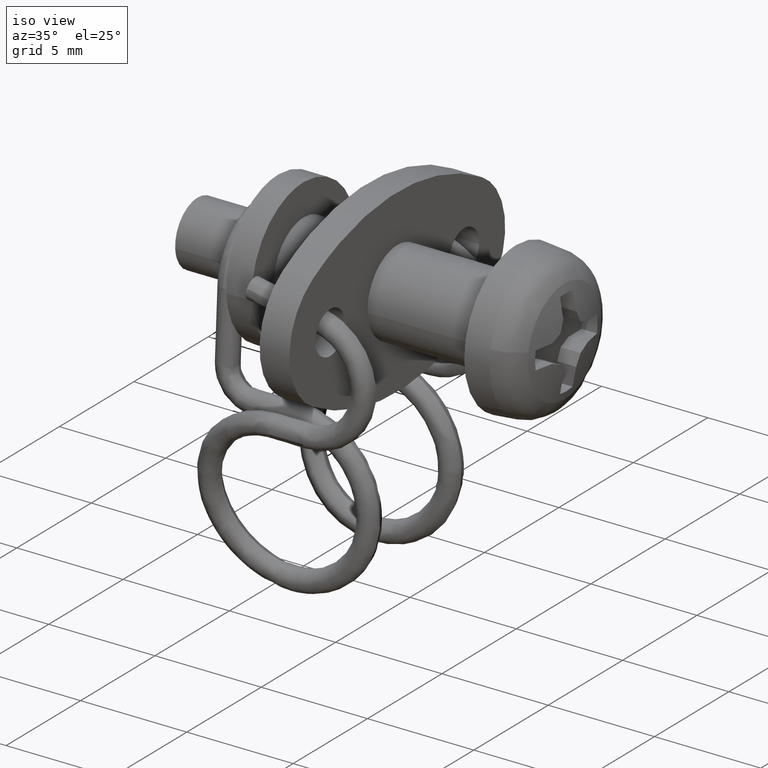
[diagram: clean part render]
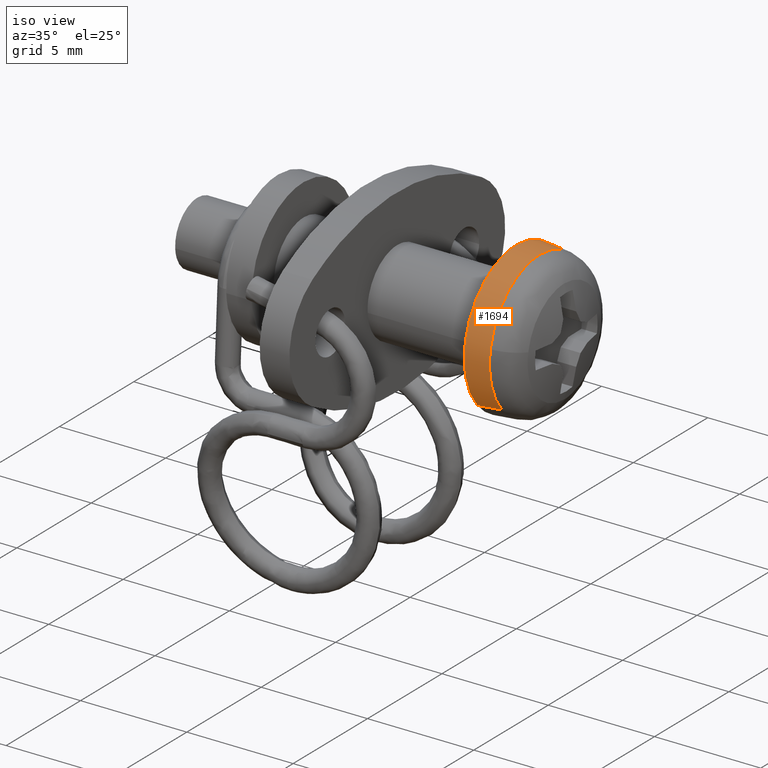
[diagram: same view with one face highlighted and labeled with its STEP entity id]
A machine part, iso view. The second image highlights one B-rep face of the part: STEP entity #1694.
In plain terms, the highlighted face is a freeform B-spline surface patch.
Its self-contained STEP definition (entity closure, byte-faithful):
#1338=CARTESIAN_POINT('',(1.119500963240281,-3.341732544523715,0.637469575953667));
#1339=VERTEX_POINT('',#1338);
#1340=CARTESIAN_POINT('',(1.119500963222550,0.0,3.401991160982941));
#1341=VERTEX_POINT('',#1340);
#1342=CARTESIAN_POINT('',(1.119500963240281,-3.341732544523714,0.637469575953667));
#1343=CARTESIAN_POINT('',(1.119500963231416,-2.814371847926791,3.401991160982796));
#1344=CARTESIAN_POINT('',(1.119500963222550,0.0,3.401991160982941));
#1352=(BOUNDED_CURVE()B_SPLINE_CURVE(2,(#1342,#1343,#1344),.UNSPECIFIED.,.F.,.U.)B_SPLINE_CURVE_WITH_KNOTS((3,3),(0.782161366259537,1.0),.UNSPECIFIED.)CURVE()GEOMETRIC_REPRESENTATION_ITEM()RATIONAL_B_SPLINE_CURVE((0.934335795160187,0.744786165527324,1.0))REPRESENTATION_ITEM(''));
#1353=EDGE_CURVE('',#1339,#1341,#1352,.T.);
#1385=CARTESIAN_POINT('',(1.119500963231011,2.547940742091299,2.254227547119686));
#1386=VERTEX_POINT('',#1385);
#1402=CARTESIAN_POINT('',(1.119500963222550,0.0,3.401991160982941));
#1403=CARTESIAN_POINT('',(1.119500963225843,1.532485275169217,3.401991160982948));
#1404=CARTESIAN_POINT('',(1.119500963231011,2.547940742091299,2.254227547119686));
#1412=(BOUNDED_CURVE()B_SPLINE_CURVE(2,(#1402,#1403,#1404),.UNSPECIFIED.,.F.,.U.)B_SPLINE_CURVE_WITH_KNOTS((3,3),(0.0,0.134220111940452),.UNSPECIFIED.)CURVE()GEOMETRIC_REPRESENTATION_ITEM()RATIONAL_B_SPLINE_CURVE((1.0,0.842751357537037,0.854350158224978))REPRESENTATION_ITEM(''));
#1413=EDGE_CURVE('',#1341,#1386,#1412,.T.);
#1441=CARTESIAN_POINT('',(1.119500963231011,-2.547940742091299,-2.254227547119685));
#1442=VERTEX_POINT('',#1441);
#1443=CARTESIAN_POINT('',(1.119500963231011,-2.547940742091300,-2.254227547119684));
#1444=CARTESIAN_POINT('',(1.119500963235377,-3.401991160981770,-1.288899152977317));
#1445=CARTESIAN_POINT('',(1.119500963238745,-3.401991160981526,-2.478705E-013));
#1446=CARTESIAN_POINT('',(1.119500963239585,-3.401991160981464,0.321582846138513));
#1447=CARTESIAN_POINT('',(1.119500963240281,-3.341732544523715,0.637469575953667));
#1455=(BOUNDED_CURVE()B_SPLINE_CURVE(2,(#1443,#1444,#1445,#1446,#1447),.UNSPECIFIED.,.F.,.U.)B_SPLINE_CURVE_WITH_KNOTS((3,2,3),(0.634220111940452,0.750000000000000,0.782161366259537),.UNSPECIFIED.)CURVE()GEOMETRIC_REPRESENTATION_ITEM()RATIONAL_B_SPLINE_CURVE((0.854350158224977,0.864355423649511,1.0,0.962320615659223,0.934335795160187))REPRESENTATION_ITEM(''));
#1456=EDGE_CURVE('',#1442,#1339,#1455,.T.);
#1592=CARTESIAN_POINT('',(-5.332540E-015,-2.621345022761561,-2.319170168755171));
#1593=VERTEX_POINT('',#1592);
#1594=CARTESIAN_POINT('',(1.119500963231011,-2.547940742091299,-2.254227547119685));
#1595=CARTESIAN_POINT('',(-5.332540E-015,-2.621345022761561,-2.319170168755171));
#1596=QUASI_UNIFORM_CURVE('',1,(#1594,#1595),.UNSPECIFIED.,.F.,.U.);
#1597=EDGE_CURVE('',#1442,#1593,#1596,.T.);
#1614=CARTESIAN_POINT('',(-5.332540E-015,2.621345022761561,2.319170168755171));
#1615=VERTEX_POINT('',#1614);
#1631=CARTESIAN_POINT('',(1.119500963231011,2.547940742091299,2.254227547119686));
#1632=CARTESIAN_POINT('',(-5.332540E-015,2.621345022761561,2.319170168755171));
#1633=QUASI_UNIFORM_CURVE('',1,(#1631,#1632),.UNSPECIFIED.,.F.,.U.);
#1634=EDGE_CURVE('',#1386,#1615,#1633,.T.);
#1639=CARTESIAN_POINT('',(1.147488487321288,-2.546105635073855,-2.252603981578096));
#1640=CARTESIAN_POINT('',(1.147488487321288,-4.798709616651951,0.293501653495759));
#1641=CARTESIAN_POINT('',(1.147488487321288,-2.252603981578096,2.546105635073855));
#1642=CARTESIAN_POINT('',(1.147488487321288,0.293501653495759,4.798709616651951));
#1643=CARTESIAN_POINT('',(1.147488487321288,2.546105635073855,2.252603981578096));
#1644=CARTESIAN_POINT('',(-0.028687212183033,-2.623226007453774,-2.320834323434573));
#1645=CARTESIAN_POINT('',(-0.028687212183033,-4.944060330888348,0.302391684019201));
#1646=CARTESIAN_POINT('',(-0.028687212183033,-2.320834323434573,2.623226007453774));
#1647=CARTESIAN_POINT('',(-0.028687212183033,0.302391684019201,4.944060330888348));
#1648=CARTESIAN_POINT('',(-0.028687212183033,2.623226007453774,2.320834323434573));
#1656=(BOUNDED_SURFACE()B_SPLINE_SURFACE(2,1,((#1639,#1644),(#1640,#1645),(#1641,#1646),(#1642,#1647),(#1643,#1648)),.UNSPECIFIED.,.F.,.F.,.U.)B_SPLINE_SURFACE_WITH_KNOTS((3,2,3),(2,2),(0.0,5.803151023734780,11.606302047469560),(0.0,1.0),.UNSPECIFIED.)GEOMETRIC_REPRESENTATION_ITEM()RATIONAL_B_SPLINE_SURFACE(((1.0,1.0),(0.707106781186548,0.707106781186548),(1.0,1.0),(0.707106781186548,0.707106781186548),(1.0,1.0)))REPRESENTATION_ITEM('')SURFACE());
#1657=ORIENTED_EDGE('',*,*,#1413,.T.);
#1658=ORIENTED_EDGE('',*,*,#1634,.T.);
#1659=CARTESIAN_POINT('',(-6.661338E-016,0.0,3.500000000000100));
#1660=VERTEX_POINT('',#1659);
#1661=CARTESIAN_POINT('',(-6.661338E-016,0.0,3.500000000000100));
#1662=CARTESIAN_POINT('',(-6.661338E-016,1.576635037917803,3.500000000000100));
#1663=CARTESIAN_POINT('',(-6.661338E-016,2.621345022761540,2.319170168755196));
#1671=(BOUNDED_CURVE()B_SPLINE_CURVE(2,(#1661,#1662,#1663),.UNSPECIFIED.,.F.,.U.)B_SPLINE_CURVE_WITH_KNOTS((3,3),(0.0,0.134220111940426),.UNSPECIFIED.)CURVE()GEOMETRIC_REPRESENTATION_ITEM()RATIONAL_B_SPLINE_CURVE((1.0,0.842751357537067,0.854350158224973))REPRESENTATION_ITEM(''));
#1672=EDGE_CURVE('',#1660,#1615,#1671,.T.);
#1673=ORIENTED_EDGE('',*,*,#1672,.F.);
#1674=CARTESIAN_POINT('',(-5.332540E-015,-2.621345022761561,-2.319170168755171));
#1675=CARTESIAN_POINT('',(-6.661338E-016,-3.500000000000102,-1.326031380433673));
#1676=CARTESIAN_POINT('',(-6.661338E-016,-3.500000000000100,0.0));
#1677=CARTESIAN_POINT('',(-6.661338E-016,-3.500000000000100,3.500000000000100));
#1678=CARTESIAN_POINT('',(-6.661338E-016,0.0,3.500000000000100));
#1686=(BOUNDED_CURVE()B_SPLINE_CURVE(2,(#1674,#1675,#1676,#1677,#1678),.UNSPECIFIED.,.F.,.U.)B_SPLINE_CURVE_WITH_KNOTS((3,2,3),(0.634220111940426,0.750000000000000,1.0),.UNSPECIFIED.)CURVE()GEOMETRIC_REPRESENTATION_ITEM()RATIONAL_B_SPLINE_CURVE((0.854350158224973,0.864355423649480,1.0,0.707106781186548,1.0))REPRESENTATION_ITEM(''));
#1687=EDGE_CURVE('',#1593,#1660,#1686,.T.);
#1688=ORIENTED_EDGE('',*,*,#1687,.F.);
#1689=ORIENTED_EDGE('',*,*,#1597,.F.);
#1690=ORIENTED_EDGE('',*,*,#1456,.T.);
#1691=ORIENTED_EDGE('',*,*,#1353,.T.);
#1692=EDGE_LOOP('',(#1657,#1658,#1673,#1688,#1689,#1690,#1691));
#1693=FACE_OUTER_BOUND('',#1692,.T.);
#1694=ADVANCED_FACE('',(#1693),#1656,.T.);